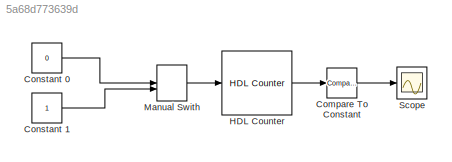
MODEL slx_5a68d773639d
KIND model
CONFIG AbsTol = auto
CONFIG EnableMultiTasking = off
CONFIG FixedStep = 1
CONFIG MaxStep = auto
CONFIG MinStep = auto
CONFIG RelTol = 1e-3
CONFIG SampleTimeConstraint = Unconstrained
CONFIG Solver = FixedStepDiscrete
CONFIG SolverName = FixedStepDiscrete
CONFIG StartTime = 0.0
CONFIG StopTime = 1000
BLOCK [Reference] Compare To Constant  REF=simulink/Logic and Bit
Operations/Compare
To Constant
  Ports = [1, 1]
  SourceBlock = simulink/Logic and Bit\nOperations/Compare\nTo Constant
  SourceProductBaseCode = SL
  SourceProductName = Simulink
  SourceType = Compare To Constant
BLOCK [Constant] Constant 0
  OutDataTypeStr = boolean
  Value = 0
BLOCK [Constant] Constant 1
  OutDataTypeStr = boolean
BLOCK [Reference] HDL Counter   REF=hdlsllib/Sources/HDL Counter
  Ports = [1, 1]
  SourceBlock = hdlsllib/Sources/HDL Counter
  SourceProductBaseCode = HD
  SourceProductName = HDL Coder
  SourceType = HDL Counter
BLOCK [ManualSwitch] Manual Swith
  CurrentSetting = 0
BLOCK [Scope] Scope 
  Floating = off
  NumInputPorts = 1
  Ports = [1]
  ScopeSpecificationString = Simulink.scopes.TimeScopeBlockCfg('CurrentConfiguration', extmgr.ConfigurationSet(extmgr.Configuration('Core','General UI',true),extmgr.Configuration('Core','Source UI',true),extmgr.Configuration('Sources','WiredSimulink',true),extmgr.Configuration('Visuals','Time Domain',true,'SerializedDisplays',{struct('MinYLimReal','-0.125','MaxYLimReal','1.125','YLabelReal','','MinYLimMag','0.00000','MaxYLimM...<+1382ch>
LINE Compare To Constant:1 -> Scope :1
LINE Constant 0:1 -> Manual Swith:1
LINE Constant 1:1 -> Manual Swith:2
LINE HDL Counter :1 -> Compare To Constant:1
LINE Manual Swith:1 -> HDL Counter :1
